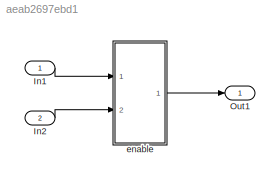
MODEL slx_aeab2697ebd1
KIND model
CONFIG AbsTol = auto
CONFIG EnableMultiTasking = off
CONFIG FixedStep = auto
CONFIG MaxStep = auto
CONFIG MinStep = auto
CONFIG RelTol = 1e-3
CONFIG SampleTimeConstraint = Unconstrained
CONFIG Solver = FixedStepDiscrete
CONFIG SolverName = FixedStepDiscrete
CONFIG StartTime = 0.0
CONFIG StopTime = 10.0
BLOCK [Inport] In1
  IconDisplay = Port number
BLOCK [Inport] In2
  IconDisplay = Port number
  Port = 2
BLOCK [Outport] Out1
  IconDisplay = Port number
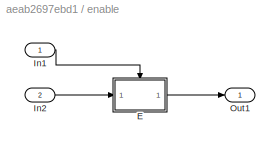
BLOCK [SubSystem] enable
  AncestorBlock = Block_TestLib/enable
  Ports = [2, 1]
  RequestExecContextInheritance = off
  Variant = off
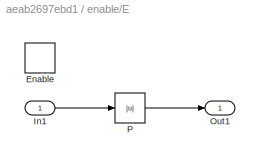
BLOCK [SubSystem] enable/E
  Ports = [1, 1, 1]
  RequestExecContextInheritance = off
  TreatAsAtomicUnit = on
  Variant = off
BLOCK [EnablePort] enable/E/Enable
  Ports = []
BLOCK [Inport] enable/E/In1
  IconDisplay = Port number
  OutDataTypeStr = int16
  PortDimensions = 3
BLOCK [Outport] enable/E/Out1
  IconDisplay = Port number
BLOCK [Abs] enable/E/P
  OutDataTypeStr = uint16
  RndMeth = Convergent
  SaturateOnIntegerOverflow = off
BLOCK [Inport] enable/In1
  IconDisplay = Port number
  OutDataTypeStr = boolean
BLOCK [Inport] enable/In2
  IconDisplay = Port number
  Port = 2
BLOCK [Outport] enable/Out1
  IconDisplay = Port number
LINE In1:1 -> enable:1
LINE In2:1 -> enable:2
LINE enable:1 -> Out1:1
